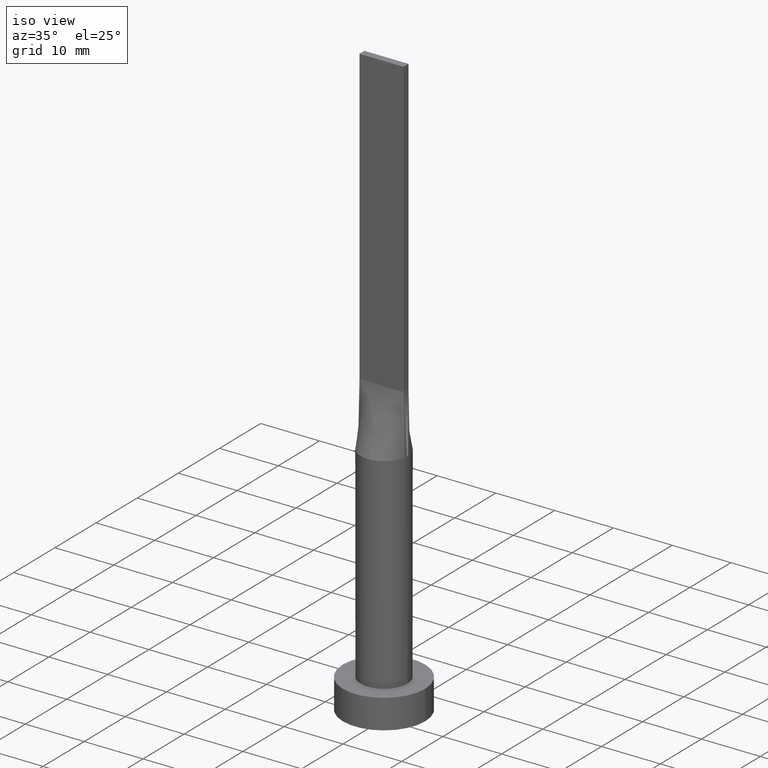
[diagram: clean part render]
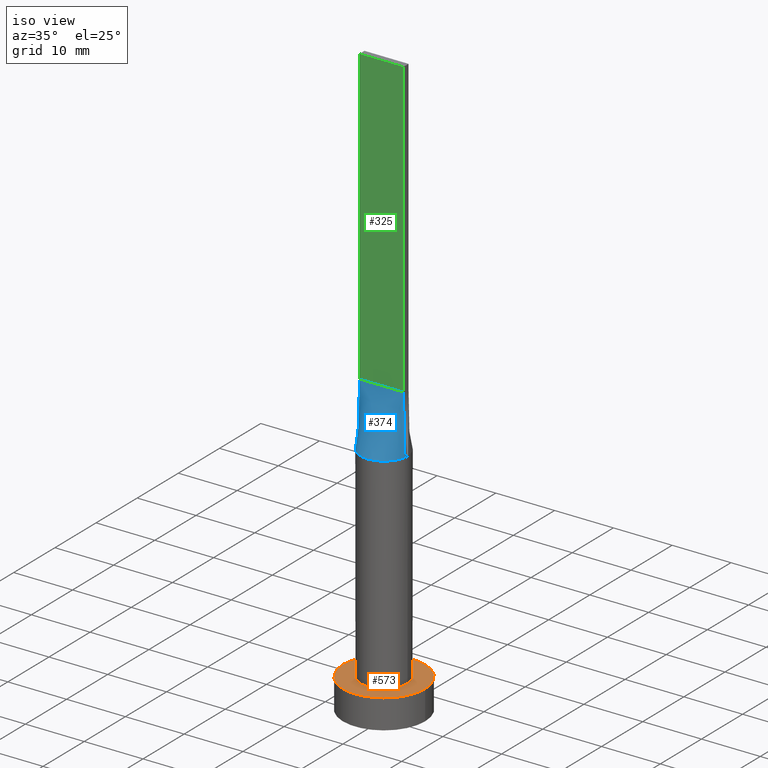
[diagram: same view with three faces highlighted in distinct colors, each labeled with its STEP entity id]
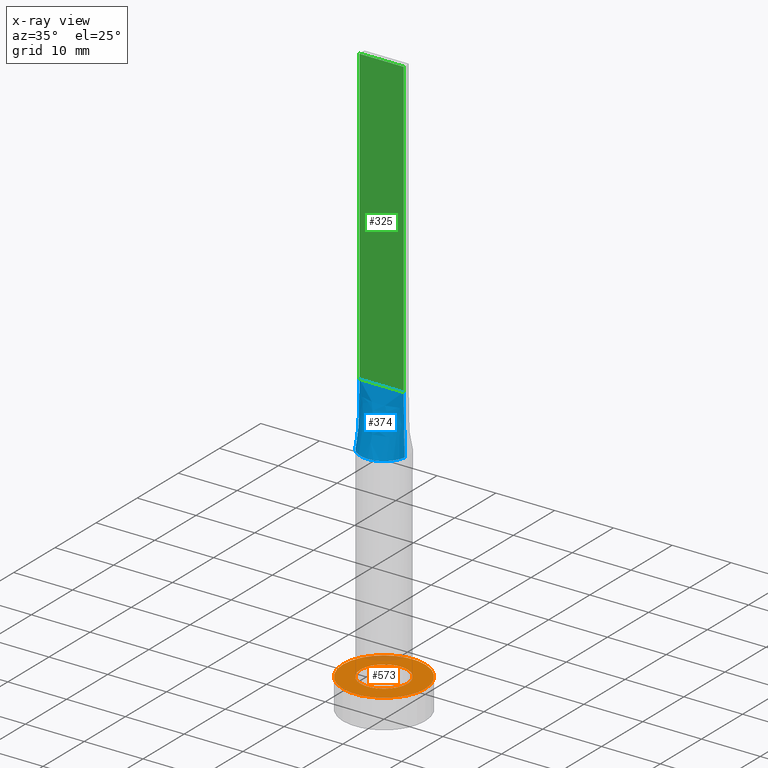
[diagram: x-ray of the same camera — body ghosted, the three highlighted faces saturated]
A machine part, iso view with three faces highlighted in distinct colors.
The next image is the same camera in x-ray (body ghosted, the three faces saturated) — at least one of them is partly hidden behind the body in this view.
Their STEP definitions:

[orange] entity #573 — the highlighted planar face has unit normal (0, 0, 1).
#6 = ORIENTED_EDGE ( 'NONE', *, *, #55, .T. ) ;
#7 = CARTESIAN_POINT ( 'NONE',  ( 0.000000000000000000, 0.000000000000000000, 5.000000000000000000 ) ) ;
#15 = CIRCLE ( 'NONE', #56, 7.000000000000000000 ) ;
#16 = VERTEX_POINT ( 'NONE', #352 ) ;
#25 = AXIS2_PLACEMENT_3D ( 'NONE', #70, #375, #515 ) ;
#41 = DIRECTION ( 'NONE',  ( 0.000000000000000000, 0.000000000000000000, 1.000000000000000000 ) ) ;
#53 = DIRECTION ( 'NONE',  ( 1.000000000000000000, 0.000000000000000000, -0.000000000000000000 ) ) ;
#55 = EDGE_CURVE ( 'NONE', #16, #458, #291, .T. ) ;
#56 = AXIS2_PLACEMENT_3D ( 'NONE', #223, #271, #455 ) ;
#70 = CARTESIAN_POINT ( 'NONE',  ( 0.000000000000000000, 0.000000000000000000, 5.000000000000000000 ) ) ;
#77 = DIRECTION ( 'NONE',  ( 0.000000000000000000, 0.000000000000000000, 1.000000000000000000 ) ) ;
#87 = CARTESIAN_POINT ( 'NONE',  ( 4.000000000000000000, 4.898587196589412829E-16, 5.000000000000000000 ) ) ;
#92 = ORIENTED_EDGE ( 'NONE', *, *, #546, .T. ) ;
#94 = VERTEX_POINT ( 'NONE', #87 ) ;
#133 = CARTESIAN_POINT ( 'NONE',  ( 0.000000000000000000, 0.000000000000000000, 5.000000000000000000 ) ) ;
#151 = VERTEX_POINT ( 'NONE', #479 ) ;
#162 = DIRECTION ( 'NONE',  ( 1.000000000000000000, 0.000000000000000000, 0.000000000000000000 ) ) ;
#188 = PLANE ( 'NONE',  #383 ) ;
#206 = CIRCLE ( 'NONE', #25, 4.000000000000000000 ) ;
#223 = CARTESIAN_POINT ( 'NONE',  ( 0.000000000000000000, 0.000000000000000000, 5.000000000000000000 ) ) ;
#227 = DIRECTION ( 'NONE',  ( 0.000000000000000000, 0.000000000000000000, 1.000000000000000000 ) ) ;
#256 = CARTESIAN_POINT ( 'NONE',  ( 7.000000000000000000, 8.572527594031473190E-16, 5.000000000000000000 ) ) ;
#271 = DIRECTION ( 'NONE',  ( 0.000000000000000000, 0.000000000000000000, 1.000000000000000000 ) ) ;
#287 = EDGE_LOOP ( 'NONE', ( #6, #92 ) ) ;
#291 = CIRCLE ( 'NONE', #548, 7.000000000000000000 ) ;
#302 = CIRCLE ( 'NONE', #329, 4.000000000000000000 ) ;
#329 = AXIS2_PLACEMENT_3D ( 'NONE', #475, #77, #391 ) ;
#334 = EDGE_CURVE ( 'NONE', #151, #94, #206, .T. ) ;
#352 = CARTESIAN_POINT ( 'NONE',  ( -7.000000000000000000, 0.000000000000000000, 5.000000000000000000 ) ) ;
#360 = FACE_BOUND ( 'NONE', #416, .T. ) ;
#366 = ORIENTED_EDGE ( 'NONE', *, *, #334, .F. ) ;
#375 = DIRECTION ( 'NONE',  ( 0.000000000000000000, 0.000000000000000000, 1.000000000000000000 ) ) ;
#383 = AXIS2_PLACEMENT_3D ( 'NONE', #7, #227, #53 ) ;
#391 = DIRECTION ( 'NONE',  ( 1.000000000000000000, 0.000000000000000000, 0.000000000000000000 ) ) ;
#402 = FACE_OUTER_BOUND ( 'NONE', #287, .T. ) ;
#410 = EDGE_CURVE ( 'NONE', #94, #151, #302, .T. ) ;
#416 = EDGE_LOOP ( 'NONE', ( #366, #545 ) ) ;
#455 = DIRECTION ( 'NONE',  ( 1.000000000000000000, 0.000000000000000000, 0.000000000000000000 ) ) ;
#458 = VERTEX_POINT ( 'NONE', #256 ) ;
#475 = CARTESIAN_POINT ( 'NONE',  ( 0.000000000000000000, 0.000000000000000000, 5.000000000000000000 ) ) ;
#479 = CARTESIAN_POINT ( 'NONE',  ( -4.000000000000000000, 0.000000000000000000, 5.000000000000000000 ) ) ;
#515 = DIRECTION ( 'NONE',  ( 1.000000000000000000, 0.000000000000000000, 0.000000000000000000 ) ) ;
#545 = ORIENTED_EDGE ( 'NONE', *, *, #410, .F. ) ;
#546 = EDGE_CURVE ( 'NONE', #458, #16, #15, .T. ) ;
#548 = AXIS2_PLACEMENT_3D ( 'NONE', #133, #41, #162 ) ;
#573 = ADVANCED_FACE ( 'NONE', ( #360, #402 ), #188, .T. ) ;

[blue] entity #374 — the highlighted face is a freeform B-spline surface patch.
#8 = CARTESIAN_POINT ( 'NONE',  ( 3.950116941581656604, -0.6320178829360038053, 40.00000000000000000 ) ) ;
#14 = CARTESIAN_POINT ( 'NONE',  ( 3.800365609718893367, -1.311488165564686614, 40.00000000000001421 ) ) ;
#19 = CARTESIAN_POINT ( 'NONE',  ( 0.6250000000000017764, -0.5999999999999995337, 50.00000000000000000 ) ) ;
#21 = CARTESIAN_POINT ( 'NONE',  ( -2.553164211252349158, -3.116528153703943094, 40.00000000000000711 ) ) ;
#47 = CARTESIAN_POINT ( 'NONE',  ( 0.000000000000000000, 0.000000000000000000, 40.00000000000000000 ) ) ;
#51 = CARTESIAN_POINT ( 'NONE',  ( 3.849881263833410561, -0.6159810022133445084, 45.00000000000000000 ) ) ;
#61 = CARTESIAN_POINT ( 'NONE',  ( 3.461914487322980349, -2.043998057340943753, 40.00000000000002842 ) ) ;
#63 = EDGE_CURVE ( 'NONE', #243, #531, #395, .T. ) ;
#67 = CARTESIAN_POINT ( 'NONE',  ( -3.897760447583618948, -0.9569750049467102837, 40.00000000000000000 ) ) ;
#73 = CARTESIAN_POINT ( 'NONE',  ( 0.3125000000000016098, -0.5999999999999995337, 50.00000000000000000 ) ) ;
#82 = CARTESIAN_POINT ( 'NONE',  ( -3.750000000000000000, -0.5999999999999993117, 50.00000000000000000 ) ) ;
#101 = EDGE_LOOP ( 'NONE', ( #142, #221, #401, #240 ) ) ;
#106 = CARTESIAN_POINT ( 'NONE',  ( 1.562500000000001776, -0.5999999999999996447, 50.00000000000000000 ) ) ;
#108 = CARTESIAN_POINT ( 'NONE',  ( -3.949762527666821565, -0.6319620044266894832, 40.00000000000000000 ) ) ;
#115 = CARTESIAN_POINT ( 'NONE',  ( -0.6249999999999978906, -0.5999999999999994227, 50.00000000000000000 ) ) ;
#121 = VECTOR ( 'NONE', #413, 1000.000000000000000 ) ;
#123 = CARTESIAN_POINT ( 'NONE',  ( -3.849881263833410561, -0.6159810022133443974, 45.00000000000000000 ) ) ;
#134 = CARTESIAN_POINT ( 'NONE',  ( -3.750000000000000000, -0.5999999999999993117, 50.00000000000000000 ) ) ;
#136 = LINE ( 'NONE', #51, #121 ) ;
#142 = ORIENTED_EDGE ( 'NONE', *, *, #527, .T. ) ;
#144 = EDGE_CURVE ( 'NONE', #243, #190, #520, .T. ) ;
#145 = CARTESIAN_POINT ( 'NONE',  ( -0.5684794080625156232, -4.000000000000000000, 39.99999999999999289 ) ) ;
#167 = B_SPLINE_SURFACE_WITH_KNOTS ( 'NONE', 3, 1, ( 
 ( #108, #469 ),
 ( #67, #466 ),
 ( #431, #249 ),
 ( #207, #424 ),
 ( #339, #514 ),
 ( #21, #295 ),
 ( #297, #245 ),
 ( #204, #115 ),
 ( #145, #422 ),
 ( #284, #73 ),
 ( #472, #19 ),
 ( #342, #377 ),
 ( #505, #106 ),
 ( #199, #337 ),
 ( #61, #252 ),
 ( #14, #428 ),
 ( #381, #552 ),
 ( #561, #554 ) ),
 .UNSPECIFIED., .F., .F., .F.,
 ( 4, 2, 2, 2, 2, 2, 2, 2, 4 ),
 ( 2, 2 ),
 ( 0.000000000000000000, 0.1250000000000000555, 0.2500000000000001110, 0.3750000000000001665, 0.5000000000000001110, 0.6250000000000001110, 0.7500000000000001110, 0.8750000000000000000, 1.000000000000000000 ),
 ( 0.000000000000000000, 1.000000000000000000 ),
 .UNSPECIFIED. ) ;
#184 = VECTOR ( 'NONE', #309, 1000.000000000000000 ) ;
#190 = VERTEX_POINT ( 'NONE', #451 ) ;
#199 = CARTESIAN_POINT ( 'NONE',  ( 3.219262664220059023, -2.422342486356523938, 40.00000000000000711 ) ) ;
#204 = CARTESIAN_POINT ( 'NONE',  ( -1.134810363096319996, -3.874001625491796830, 39.99999999999999289 ) ) ;
#207 = CARTESIAN_POINT ( 'NONE',  ( -3.461914487322979905, -2.043998057340941976, 40.00000000000000000 ) ) ;
#221 = ORIENTED_EDGE ( 'NONE', *, *, #248, .T. ) ;
#240 = ORIENTED_EDGE ( 'NONE', *, *, #144, .T. ) ;
#243 = VERTEX_POINT ( 'NONE', #134 ) ;
#245 = CARTESIAN_POINT ( 'NONE',  ( -1.249999999999997558, -0.5999999999999994227, 50.00000000000000000 ) ) ;
#248 = EDGE_CURVE ( 'NONE', #267, #531, #136, .T. ) ;
#249 = CARTESIAN_POINT ( 'NONE',  ( -3.124999999999999112, -0.5999999999999993117, 50.00000000000000000 ) ) ;
#252 = CARTESIAN_POINT ( 'NONE',  ( 2.500000000000000444, -0.5999999999999996447, 50.00000000000000000 ) ) ;
#253 = FACE_OUTER_BOUND ( 'NONE', #101, .T. ) ;
#267 = VERTEX_POINT ( 'NONE', #8 ) ;
#284 = CARTESIAN_POINT ( 'NONE',  ( 0.5684794080625150681, -4.000000000000000888, 40.00000000000000000 ) ) ;
#295 = CARTESIAN_POINT ( 'NONE',  ( -1.562499999999998002, -0.5999999999999994227, 50.00000000000000000 ) ) ;
#297 = CARTESIAN_POINT ( 'NONE',  ( -2.127794970397209884, -3.430476893735947996, 40.00000000000000000 ) ) ;
#301 = VECTOR ( 'NONE', #303, 1000.000000000000000 ) ;
#303 = DIRECTION ( 'NONE',  ( -0.01997216621675832263, -0.003195546594681204517, -0.9997954296047624201 ) ) ;
#309 = DIRECTION ( 'NONE',  ( 1.000000000000000000, -5.782411586589357392E-17, 0.000000000000000000 ) ) ;
#337 = CARTESIAN_POINT ( 'NONE',  ( 2.187500000000000888, -0.5999999999999996447, 50.00000000000000000 ) ) ;
#339 = CARTESIAN_POINT ( 'NONE',  ( -3.219262664220059023, -2.422342486356523050, 39.99999999999999289 ) ) ;
#342 = CARTESIAN_POINT ( 'NONE',  ( 2.127794970397208552, -3.430476893735948440, 39.99999999999999289 ) ) ;
#357 = DIRECTION ( 'NONE',  ( 1.000000000000000000, 0.000000000000000000, 0.000000000000000000 ) ) ;
#374 = ADVANCED_FACE ( 'NONE', ( #253 ), #167, .T. ) ;
#377 = CARTESIAN_POINT ( 'NONE',  ( 1.250000000000001998, -0.5999999999999996447, 50.00000000000000000 ) ) ;
#381 = CARTESIAN_POINT ( 'NONE',  ( 3.897760447583619836, -0.9569750049467118380, 40.00000000000000000 ) ) ;
#395 = LINE ( 'NONE', #82, #184 ) ;
#401 = ORIENTED_EDGE ( 'NONE', *, *, #63, .F. ) ;
#413 = DIRECTION ( 'NONE',  ( -0.01997216621675832263, 0.003195546594681128623, 0.9997954296047624201 ) ) ;
#422 = CARTESIAN_POINT ( 'NONE',  ( -0.3124999999999982792, -0.5999999999999995337, 50.00000000000000711 ) ) ;
#424 = CARTESIAN_POINT ( 'NONE',  ( -2.499999999999998668, -0.5999999999999994227, 50.00000000000000000 ) ) ;
#428 = CARTESIAN_POINT ( 'NONE',  ( 3.125000000000000000, -0.5999999999999996447, 50.00000000000000000 ) ) ;
#431 = CARTESIAN_POINT ( 'NONE',  ( -3.800365609718892923, -1.311488165564685726, 40.00000000000000711 ) ) ;
#451 = CARTESIAN_POINT ( 'NONE',  ( -3.950111798046394007, -0.6320171791297864994, 40.00000000000000000 ) ) ;
#466 = CARTESIAN_POINT ( 'NONE',  ( -3.437499999999999556, -0.5999999999999993117, 50.00000000000000000 ) ) ;
#468 = CIRCLE ( 'NONE', #530, 4.000000000000000000 ) ;
#469 = CARTESIAN_POINT ( 'NONE',  ( -3.750000000000000000, -0.5999999999999993117, 50.00000000000000000 ) ) ;
#472 = CARTESIAN_POINT ( 'NONE',  ( 1.134810363096319108, -3.874001625491798162, 40.00000000000000000 ) ) ;
#486 = CARTESIAN_POINT ( 'NONE',  ( 3.750000000000000000, -0.5999999999999997558, 50.00000000000000000 ) ) ;
#497 = DIRECTION ( 'NONE',  ( 0.000000000000000000, 0.000000000000000000, 1.000000000000000000 ) ) ;
#505 = CARTESIAN_POINT ( 'NONE',  ( 2.553164211252348270, -3.116528153703943094, 39.99999999999999289 ) ) ;
#514 = CARTESIAN_POINT ( 'NONE',  ( -2.187499999999998668, -0.5999999999999994227, 50.00000000000000000 ) ) ;
#520 = LINE ( 'NONE', #123, #301 ) ;
#527 = EDGE_CURVE ( 'NONE', #190, #267, #468, .T. ) ;
#530 = AXIS2_PLACEMENT_3D ( 'NONE', #47, #497, #357 ) ;
#531 = VERTEX_POINT ( 'NONE', #486 ) ;
#552 = CARTESIAN_POINT ( 'NONE',  ( 3.437499999999999556, -0.5999999999999996447, 50.00000000000000000 ) ) ;
#554 = CARTESIAN_POINT ( 'NONE',  ( 3.750000000000000000, -0.5999999999999997558, 50.00000000000000000 ) ) ;
#561 = CARTESIAN_POINT ( 'NONE',  ( 3.949762527666821565, -0.6319620044266891501, 40.00000000000000000 ) ) ;

[green] entity #325 — the highlighted planar face has unit normal (0, 1, -0).
#20 = ORIENTED_EDGE ( 'NONE', *, *, #396, .F. ) ;
#38 = VERTEX_POINT ( 'NONE', #346 ) ;
#63 = EDGE_CURVE ( 'NONE', #243, #531, #395, .T. ) ;
#64 = PLANE ( 'NONE',  #255 ) ;
#74 = EDGE_CURVE ( 'NONE', #38, #531, #399, .T. ) ;
#82 = CARTESIAN_POINT ( 'NONE',  ( -3.750000000000000000, -0.5999999999999993117, 50.00000000000000000 ) ) ;
#134 = CARTESIAN_POINT ( 'NONE',  ( -3.750000000000000000, -0.5999999999999993117, 50.00000000000000000 ) ) ;
#163 = VECTOR ( 'NONE', #547, 1000.000000000000000 ) ;
#169 = EDGE_LOOP ( 'NONE', ( #260, #420, #20, #499 ) ) ;
#173 = EDGE_CURVE ( 'NONE', #222, #243, #323, .T. ) ;
#184 = VECTOR ( 'NONE', #309, 1000.000000000000000 ) ;
#185 = VECTOR ( 'NONE', #481, 1000.000000000000000 ) ;
#222 = VERTEX_POINT ( 'NONE', #498 ) ;
#224 = VECTOR ( 'NONE', #439, 1000.000000000000000 ) ;
#242 = CARTESIAN_POINT ( 'NONE',  ( -3.750000000000000000, -0.5999999999999993117, 100.0000000000000000 ) ) ;
#243 = VERTEX_POINT ( 'NONE', #134 ) ;
#255 = AXIS2_PLACEMENT_3D ( 'NONE', #242, #507, #286 ) ;
#260 = ORIENTED_EDGE ( 'NONE', *, *, #63, .T. ) ;
#281 = CARTESIAN_POINT ( 'NONE',  ( -3.750000000000000000, -0.5999999999999993117, 100.0000000000000000 ) ) ;
#286 = DIRECTION ( 'NONE',  ( -1.000000000000000000, 5.782411586589358625E-17, 0.000000000000000000 ) ) ;
#309 = DIRECTION ( 'NONE',  ( 1.000000000000000000, -5.782411586589357392E-17, 0.000000000000000000 ) ) ;
#323 = LINE ( 'NONE', #281, #163 ) ;
#325 = ADVANCED_FACE ( 'NONE', ( #330 ), #64, .F. ) ;
#330 = FACE_OUTER_BOUND ( 'NONE', #169, .T. ) ;
#346 = CARTESIAN_POINT ( 'NONE',  ( 3.750000000000000000, -0.5999999999999997558, 100.0000000000000000 ) ) ;
#392 = CARTESIAN_POINT ( 'NONE',  ( 3.750000000000000000, -0.5999999999999997558, 100.0000000000000000 ) ) ;
#395 = LINE ( 'NONE', #82, #184 ) ;
#396 = EDGE_CURVE ( 'NONE', #222, #38, #442, .T. ) ;
#399 = LINE ( 'NONE', #392, #224 ) ;
#420 = ORIENTED_EDGE ( 'NONE', *, *, #74, .F. ) ;
#439 = DIRECTION ( 'NONE',  ( -0.000000000000000000, -0.000000000000000000, -1.000000000000000000 ) ) ;
#442 = LINE ( 'NONE', #566, #185 ) ;
#481 = DIRECTION ( 'NONE',  ( 1.000000000000000000, -5.782411586589357392E-17, 0.000000000000000000 ) ) ;
#486 = CARTESIAN_POINT ( 'NONE',  ( 3.750000000000000000, -0.5999999999999997558, 50.00000000000000000 ) ) ;
#498 = CARTESIAN_POINT ( 'NONE',  ( -3.750000000000000000, -0.5999999999999993117, 100.0000000000000000 ) ) ;
#499 = ORIENTED_EDGE ( 'NONE', *, *, #173, .T. ) ;
#507 = DIRECTION ( 'NONE',  ( 5.782411586589358625E-17, 1.000000000000000000, -0.000000000000000000 ) ) ;
#531 = VERTEX_POINT ( 'NONE', #486 ) ;
#547 = DIRECTION ( 'NONE',  ( -0.000000000000000000, -0.000000000000000000, -1.000000000000000000 ) ) ;
#566 = CARTESIAN_POINT ( 'NONE',  ( -3.750000000000000000, -0.5999999999999993117, 100.0000000000000000 ) ) ;